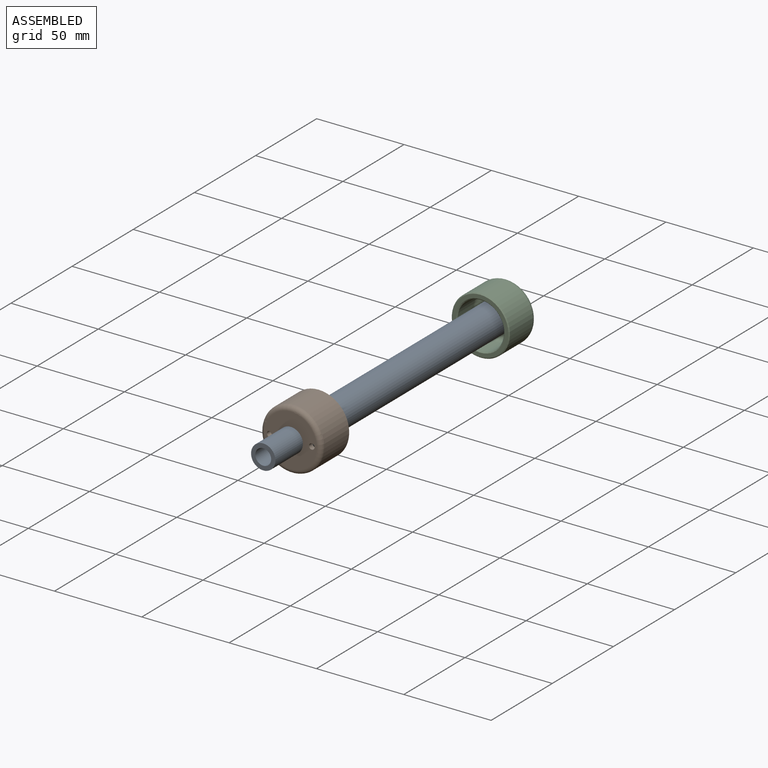
[diagram: assembled view]
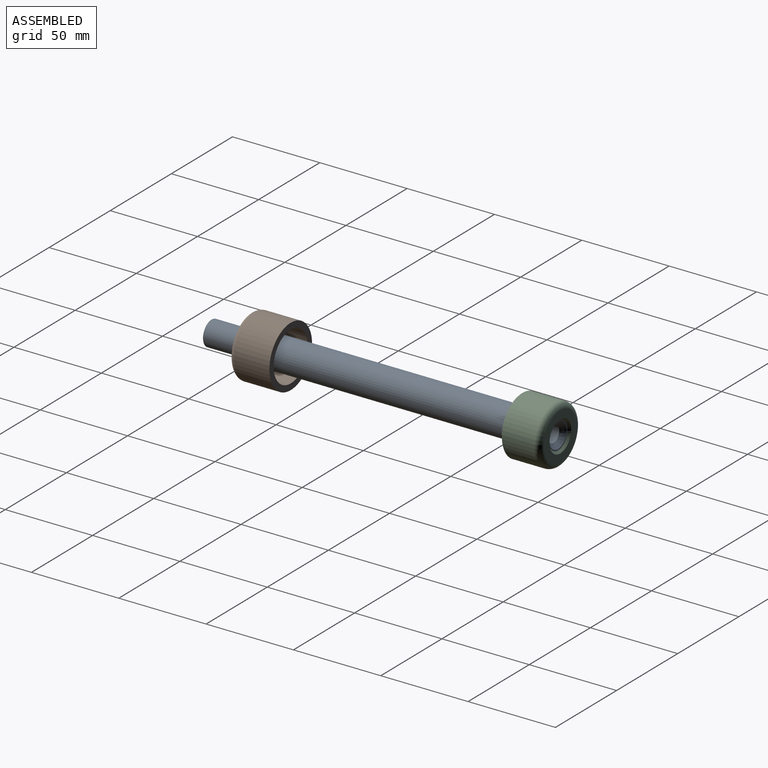
[diagram: assembled view, second angle]
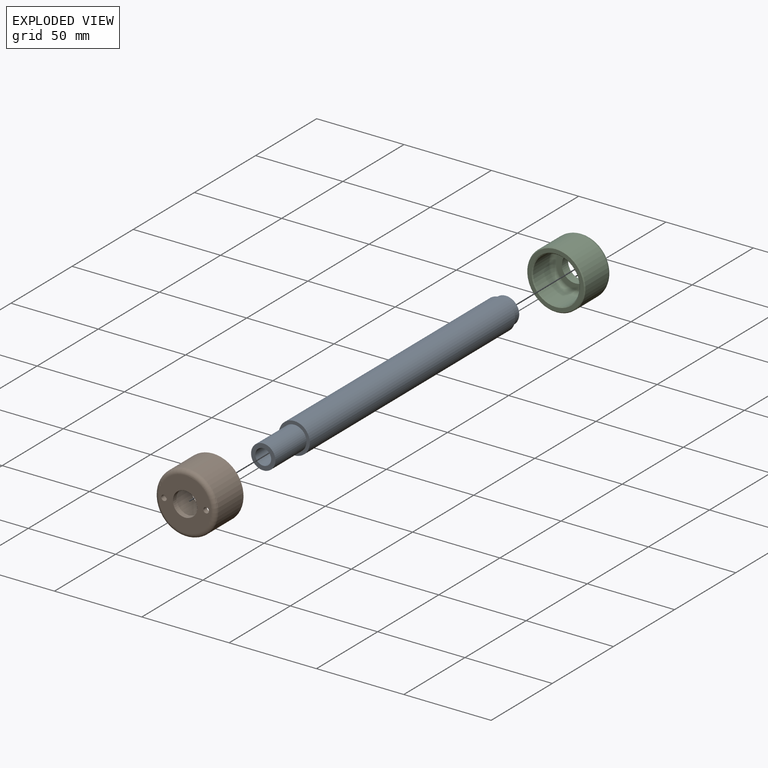
[diagram: exploded view]
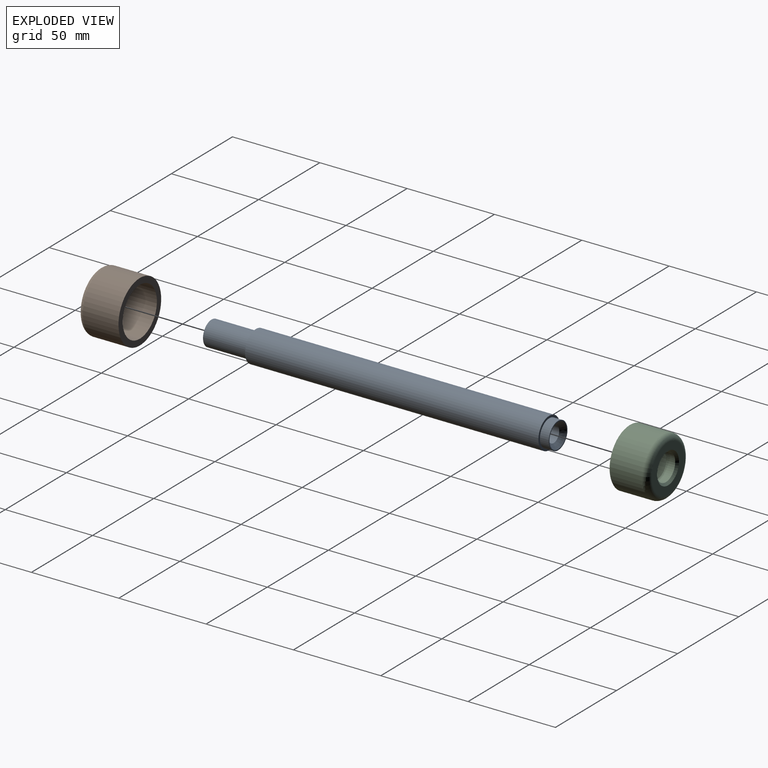
[diagram: exploded view, second angle]
ASSEMBLY  parts=3 mates=2
PART A: 9 faces, bbox 17.8x198.4x17.8 mm
  f0: cylinder r=8.89mm len=167.96mm, axis (0,1,0), area 9381.7mm2, adj f5,f8
  f1: plane 13.97x13.97mm, normal (0,1,0), area 88.7mm2, adj f3,f7
  f2: plane 15.24x15.24mm, normal (0,-1,0), area 25.2mm2, adj f4,f6
  f3: cylinder r=4.53mm len=195.9mm, axis (0,1,0), area 5580.6mm2, adj f1,f6
  f4: cylinder r=7.62mm len=15.24mm, axis (0,-1,0), area 243.2mm2, adj f2,f5
  f5: plane 17.78x17.78mm, normal (0,-1,0), area 65.9mm2, adj f0,f4
  f6: cone r=4.53mm half-angle=45deg, axis (0,-1,0), area 131mm2, adj f2,f3
  f7: cylinder r=6.99mm len=25.4mm, axis (0,1,0), area 1114.8mm2, adj f1,f8
  f8: plane 17.78x17.78mm, normal (0,1,0), area 95mm2, adj f0,f7
PART B: 9 faces, bbox 37.8x22.9x37.8 mm
  f0: cylinder r=6.99mm len=13.97mm, axis (0,1,0), area 128.2mm2, adj f3,f5
  f1: cylinder r=17.46mm len=34.93mm, axis (0,1,0), area 2229.5mm2, adj f2,f6
  f2: plane 34.93x34.93mm, normal (0,-1,0), area 344.9mm2, adj f1,f4
  f3: plane 29.85x29.85mm, normal (0,1,0), area 530.5mm2, adj f0,f6,f7,f8
  f4: cylinder r=13.97mm len=27.94mm, axis (0,-1,0), area 1750.2mm2, adj f2,f5
  f5: plane 27.94x27.94mm, normal (0,-1,0), area 444mm2, adj f0,f4,f7,f8
  f6: torus R=14.92mm, axis (0,-1,0), area 414.6mm2, adj f1,f3
  f7: cylinder r=1.59mm len=3.18mm, axis (0,1,0), area 29.1mm2, adj f3,f5
  f8: cylinder r=1.59mm len=3.18mm, axis (0,1,0), area 29.1mm2, adj f3,f5
PART C: 11 faces, bbox 36x22.2x36 mm
  f0: cylinder r=7.62mm len=15.24mm, axis (0,1,0), area 243.2mm2, adj f5,f7
  f1: cylinder r=16.64mm len=33.27mm, axis (0,1,0), area 1938.3mm2, adj f6,f10
  f2: plane 32.26x32.26mm, normal (0,-1,0), area 215.2mm2, adj f9,f10
  f3: plane 26.92x26.92mm, normal (0,1,0), area 321mm2, adj f6,f7
  f4: cylinder r=13.33mm len=26.67mm, axis (0,-1,0), area 1074.7mm2, adj f8,f9
  f5: plane 21.59x21.59mm, normal (0,-1,0), area 183.7mm2, adj f0,f8
  f6: torus R=13.46mm, axis (0,-1,0), area 485.2mm2, adj f1,f3
  f7: cone r=8.89mm half-angle=45deg, axis (0,1,0), area 93.2mm2, adj f0,f3
  f8: torus R=10.79mm, axis (0,-1,0), area 311.2mm2, adj f4,f5
  f9: cone r=13.33mm half-angle=45deg, axis (0,-1,0), area 61.3mm2, adj f2,f4
  f10: cone r=16.13mm half-angle=45deg, axis (0,1,0), area 74mm2, adj f1,f2
PLACE A rot(axis=(1,0,0),180deg) t=(-29.97,-257.89,-46.57)mm
PLACE B rot(axis=(1,0,0),180deg) t=(-29.97,-235.41,-46.57)mm
PLACE C t=(-29.97,-58.19,-46.57)mm
MATE fastened B.f4 <-> A.f0  axis (0,1,0) through (-29.97,-232.49,-46.57)mm
MATE fastened A.f4 <-> C.f0  axis (0,1,0) through (-29.97,-64.54,-46.57)mm
